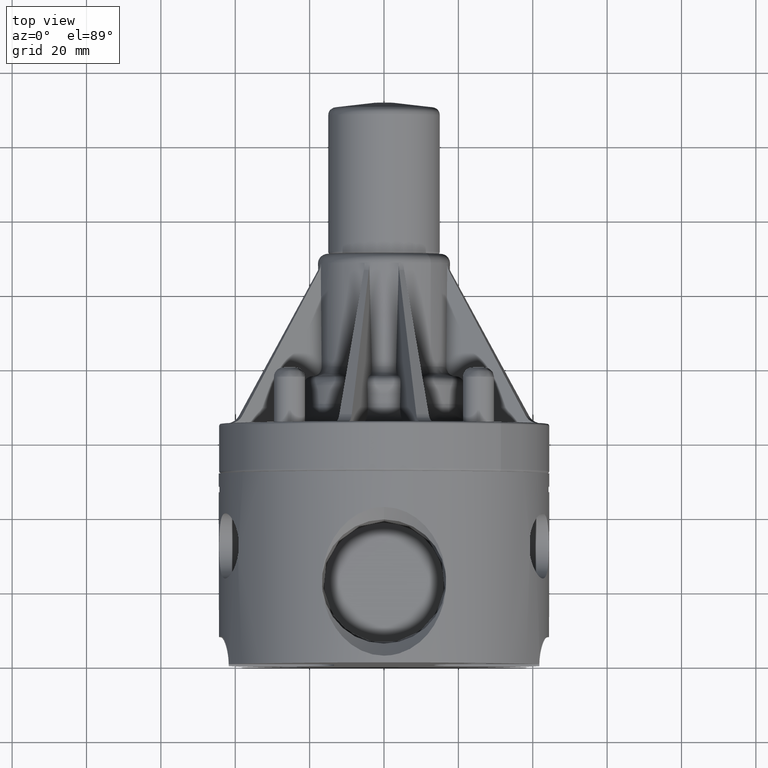
[diagram: clean part render]
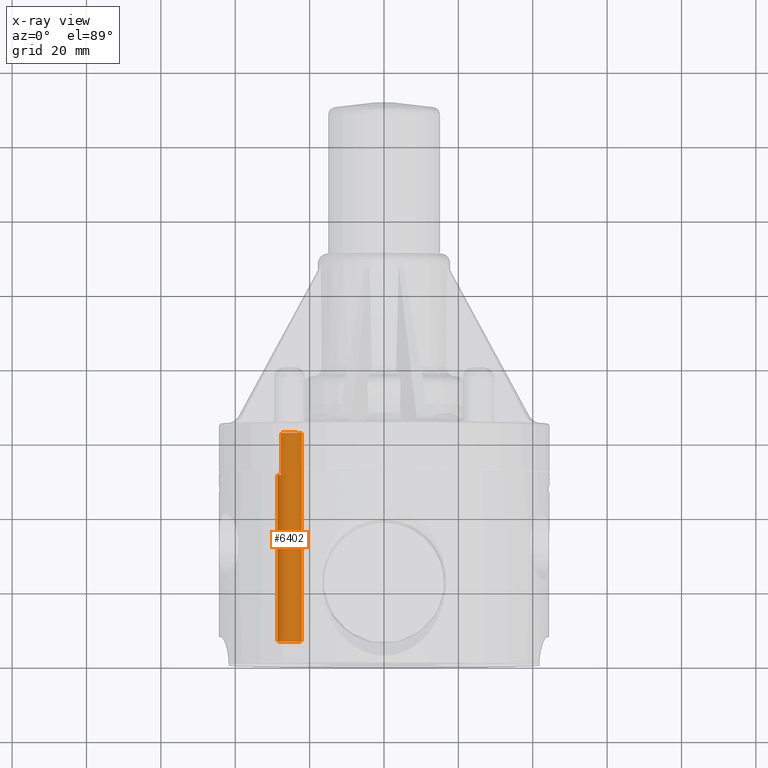
[diagram: x-ray — body ghosted, one internal face saturated and labeled with its STEP entity id]
A machine part, top view, then the same camera in x-ray: the body is ghosted and one INTERNAL B-rep face — a face not visible from any outside direction — is saturated and labeled: STEP entity #6402.
In plain terms, the highlighted cylindrical surface (bore or boss wall) has radius 3.2512 mm, axis along (-0, -1, -0).
Its self-contained STEP definition (entity closure, byte-faithful):
#6288=CARTESIAN_POINT('',(-0.909414857801264,2.030000000000000,-1.090434130796038));
#6289=VERTEX_POINT('',#6288);
#6290=CARTESIAN_POINT('',(-1.090434130796457,2.030000000000000,-0.909414857801683));
#6291=VERTEX_POINT('',#6290);
#6292=CARTESIAN_POINT('',(-1.000000000000000,2.030000000000000,-1.0));
#6293=DIRECTION('',(0.0,1.0,0.0));
#6294=DIRECTION('',(1.0,0.0,0.0));
#6295=AXIS2_PLACEMENT_3D('',#6292,#6293,#6294);
#6296=CIRCLE('',#6295,0.128000000000000);
#6297=EDGE_CURVE('',#6289,#6291,#6296,.T.);
#6325=CARTESIAN_POINT('',(-1.090434130796485,2.475000000000000,-0.909414857801712));
#6326=VERTEX_POINT('',#6325);
#6327=CARTESIAN_POINT('',(-1.090434130796405,2.030000000000000,-0.909414857801631));
#6328=DIRECTION('',(0.0,1.0,0.0));
#6329=VECTOR('',#6328,0.445000000000000);
#6330=LINE('',#6327,#6329);
#6331=EDGE_CURVE('',#6291,#6326,#6330,.T.);
#6333=CARTESIAN_POINT('',(-0.909414857801292,2.475000000000000,-1.090434130796067));
#6334=VERTEX_POINT('',#6333);
#6342=CARTESIAN_POINT('',(-0.909414857801316,2.475000000000000,-1.090434130796090));
#6343=DIRECTION('',(0.0,-1.0,0.0));
#6344=VECTOR('',#6343,0.445000000000000);
#6345=LINE('',#6342,#6344);
#6346=EDGE_CURVE('',#6334,#6289,#6345,.T.);
#6360=CARTESIAN_POINT('',(-0.872000000000000,0.270000000000000,-1.0));
#6361=VERTEX_POINT('',#6360);
#6362=CARTESIAN_POINT('',(-1.0,0.270000000000000,-1.0));
#6363=DIRECTION('',(0.0,-1.0,0.0));
#6364=DIRECTION('',(1.0,0.0,0.0));
#6365=AXIS2_PLACEMENT_3D('',#6362,#6363,#6364);
#6366=CIRCLE('',#6365,0.128000000000000);
#6367=EDGE_CURVE('',#6361,#6361,#6366,.T.);
#6378=CARTESIAN_POINT('',(-1.000000000000000,2.475000000000000,-1.0));
#6379=DIRECTION('',(0.0,-1.0,0.0));
#6380=DIRECTION('',(1.0,0.0,0.0));
#6381=AXIS2_PLACEMENT_3D('',#6378,#6379,#6380);
#6382=CIRCLE('',#6381,0.128000000000000);
#6383=EDGE_CURVE('',#6334,#6326,#6382,.T.);
#6388=CARTESIAN_POINT('',(-1.000000000000000,1.372500000000000,-1.0));
#6389=DIRECTION('',(-2.331491E-016,-1.0,-2.619265E-031));
#6390=DIRECTION('',(1.0,0.0,0.0));
#6391=AXIS2_PLACEMENT_3D('',#6388,#6389,#6390);
#6392=CYLINDRICAL_SURFACE('',#6391,0.128000000000000);
#6393=ORIENTED_EDGE('',*,*,#6331,.F.);
#6394=ORIENTED_EDGE('',*,*,#6297,.F.);
#6395=ORIENTED_EDGE('',*,*,#6346,.F.);
#6396=ORIENTED_EDGE('',*,*,#6383,.T.);
#6397=EDGE_LOOP('',(#6393,#6394,#6395,#6396));
#6398=FACE_OUTER_BOUND('',#6397,.T.);
#6399=ORIENTED_EDGE('',*,*,#6367,.F.);
#6400=EDGE_LOOP('',(#6399));
#6401=FACE_BOUND('',#6400,.T.);
#6402=ADVANCED_FACE('',(#6398,#6401),#6392,.T.);